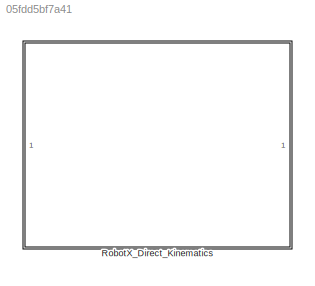
MODEL slx_05fdd5bf7a41
KIND library
CONFIG AbsTol = auto
CONFIG EnableMultiTasking = off
CONFIG FixedStep = auto
CONFIG MaxStep = auto
CONFIG MinStep = auto
CONFIG RelTol = 1e-3
CONFIG SampleTimeConstraint = Unconstrained
CONFIG SolverName = VariableStepAuto
CONFIG StartTime = 0.0
CONFIG StopTime = 10.0
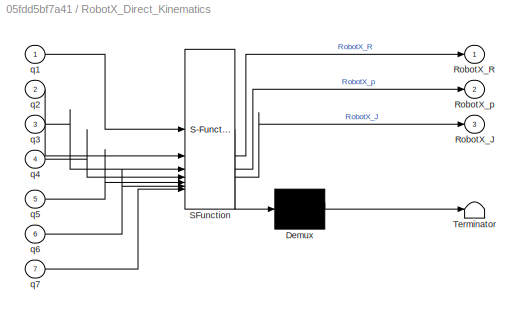
BLOCK [SubSystem] RobotX_Direct_Kinematics
  ErrorFcn = Stateflow.Translate.translate
  PermitHierarchicalResolution = ExplicitOnly
  SFBlockType = MATLAB Function
  TreatAsAtomicUnit = on
BLOCK [Demux] RobotX_Direct_Kinematics/ Demux 
  Outputs = 1
BLOCK [S-Function] RobotX_Direct_Kinematics/ SFunction 
  EnableBusSupport = off
  FunctionName = sf_sfun
  PortCounts = [7 4]
  SFcnIsStateOwnerBlock = off
  SFunctionDeploymentMode = off
  Tag = Stateflow S-Function 2
BLOCK [Terminator] RobotX_Direct_Kinematics/ Terminator 
BLOCK [Outport] RobotX_Direct_Kinematics/RobotX_J
  Port = 3
BLOCK [Outport] RobotX_Direct_Kinematics/RobotX_R
BLOCK [Outport] RobotX_Direct_Kinematics/RobotX_p
  Port = 2
BLOCK [Inport] RobotX_Direct_Kinematics/q1
BLOCK [Inport] RobotX_Direct_Kinematics/q2
  Port = 2
BLOCK [Inport] RobotX_Direct_Kinematics/q3
  Port = 3
BLOCK [Inport] RobotX_Direct_Kinematics/q4
  Port = 4
BLOCK [Inport] RobotX_Direct_Kinematics/q5
  Port = 5
BLOCK [Inport] RobotX_Direct_Kinematics/q6
  Port = 6
BLOCK [Inport] RobotX_Direct_Kinematics/q7
  Port = 7
CHART RobotX_Direct_Kinematics states=1 transitions=1
  STATE_LABEL 'eML_blk_kernel()'
  STATE_LABEL 'SCRIPT:\nfunction [RobotX_R,RobotX_p,RobotX_J] = RobotX_Direct_Kinematics(q1,q2,q3,q4,q5,q6,q7)\n%#codegen\n\n%    This function was generated by the Symbolic Math Toolbox version 24.1.\n%    18-May-2024 18:20:20\n\n% q1 = complex(q1);  % if required to enforce complex operations\n% q2 = complex(q2);  % if required to enforce complex operations\n% q3 = complex(q3);  % if required to enforce complex operati...<+3608ch>'
CHART  states=0 transitions=0
